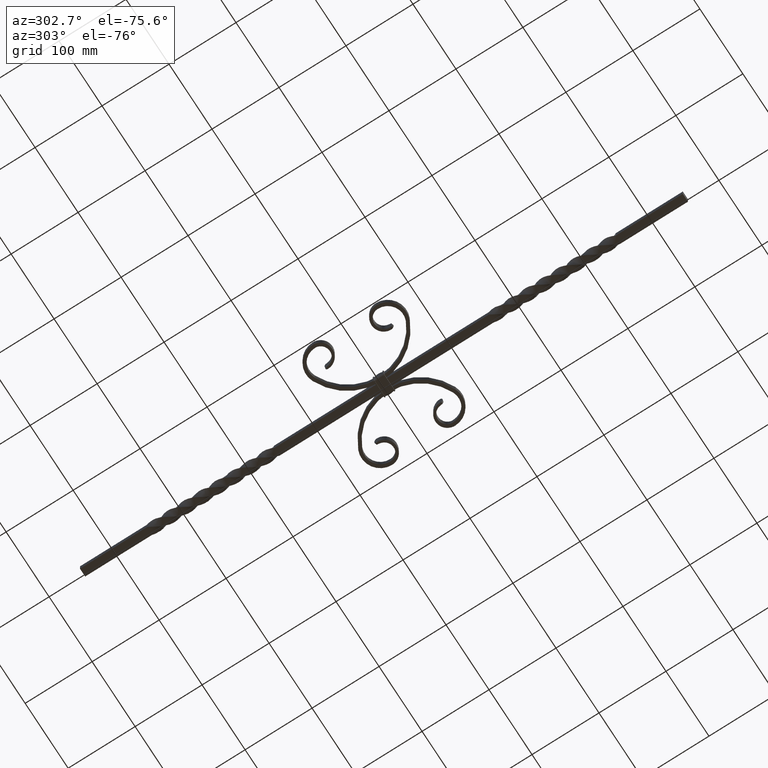
[diagram: clean part render]
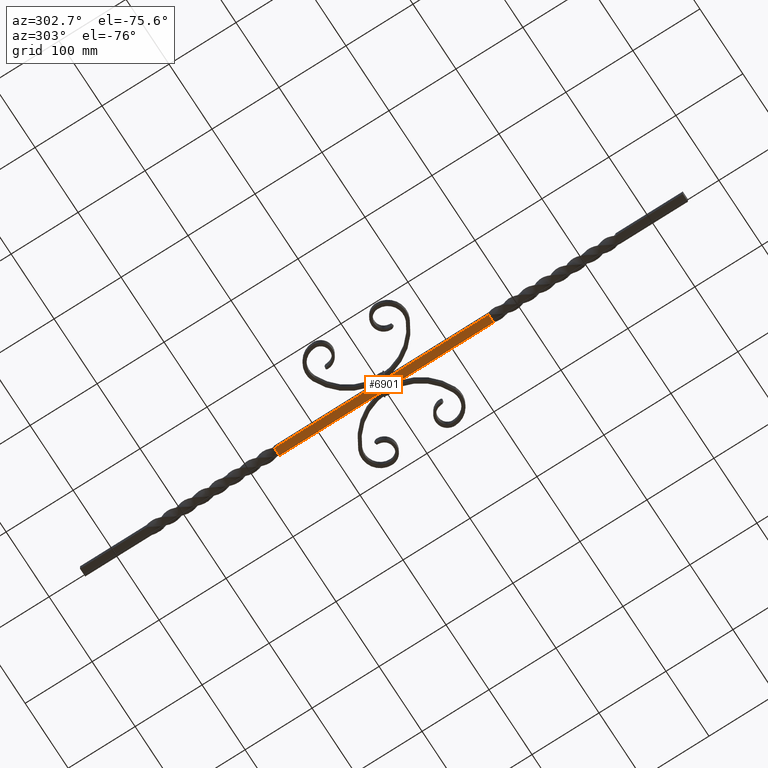
[diagram: same view with one face highlighted and labeled with its STEP entity id]
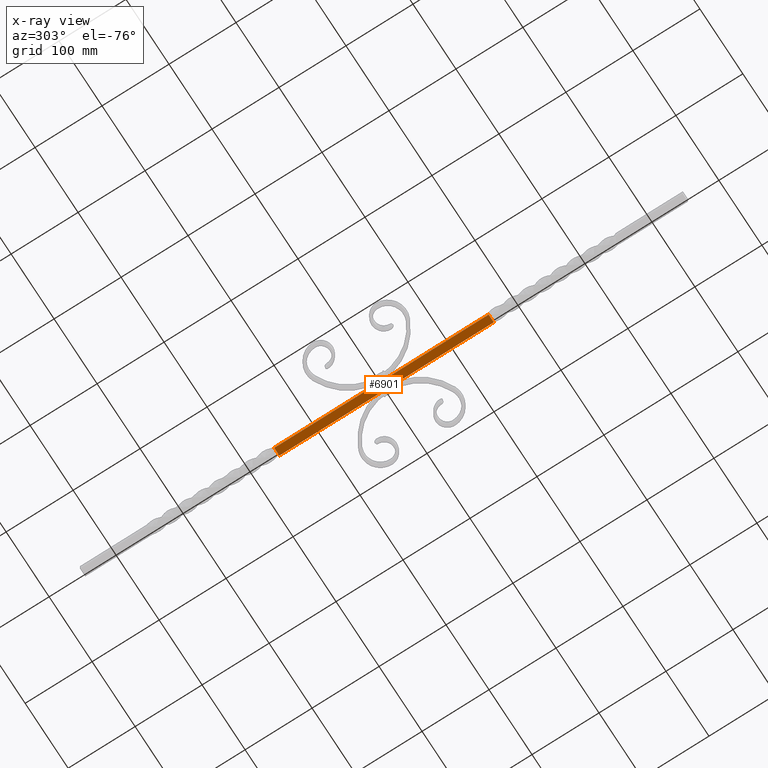
[diagram: x-ray of the same camera — body ghosted, the highlighted face saturated]
A machine part, auxiliary view. The second image highlights one B-rep face of the part: STEP entity #6901.
The next image is the same camera in x-ray: the body ghosted, the highlighted face saturated — about 0% of this face is hidden behind the body in this view.
In plain terms, the highlighted planar face has unit normal (0, -0, 1).
Its self-contained STEP definition (entity closure, byte-faithful):
#67 = CARTESIAN_POINT ( 'NONE',  ( 5.999999992773852320, -159.9999999737289897, -6.000000001710718678 ) ) ;
#265 = VERTEX_POINT ( 'NONE', #1919 ) ;
#1256 = ORIENTED_EDGE ( 'NONE', *, *, #16906, .F. ) ;
#1872 = EDGE_CURVE ( 'NONE', #6043, #13446, #7604, .T. ) ;
#1919 = CARTESIAN_POINT ( 'NONE',  ( -6.000000004341382365, -159.9999999177966572, -5.999999992773748403 ) ) ;
#2328 = CARTESIAN_POINT ( 'NONE',  ( -6.000000000405138145, -159.9999999737288761, -5.999999999594862743 ) ) ;
#2329 = CARTESIAN_POINT ( 'NONE',  ( 5.999999978469008788, 160.0000000704941101, -6.000000037018622834 ) ) ;
#2688 = DIRECTION ( 'NONE',  ( -1.000000000000000000, -1.777588897360127360E-22, 6.752312110864214897E-11 ) ) ;
#2833 = CARTESIAN_POINT ( 'NONE',  ( -6.000000036979178830, 160.0000000719577145, -5.999999978192126271 ) ) ;
#4168 = VECTOR ( 'NONE', #15801, 1000.000000000000000 ) ;
#4308 = EDGE_CURVE ( 'NONE', #6043, #13359, #15965, .T. ) ;
#4424 = FACE_OUTER_BOUND ( 'NONE', #11511, .T. ) ;
#4607 = EDGE_CURVE ( 'NONE', #13359, #265, #9376, .T. ) ;
#5171 = LINE ( 'NONE', #2328, #4168 ) ;
#5513 = PLANE ( 'NONE',  #8513 ) ;
#5534 = VECTOR ( 'NONE', #2688, 1000.000000000000000 ) ;
#6043 = VERTEX_POINT ( 'NONE', #16697 ) ;
#6682 = CARTESIAN_POINT ( 'NONE',  ( -6.000000000405138145, 450.0000000000000000, -5.999999999594862743 ) ) ;
#6901 = ADVANCED_FACE ( 'NONE', ( #4424 ), #5513, .F. ) ;
#7344 = CARTESIAN_POINT ( 'NONE',  ( 5.999999995047519796, 53.33333334211130250, -6.000000000405139922 ) ) ;
#7409 = CARTESIAN_POINT ( 'NONE',  ( 5.999999992773852320, -159.9999999737289897, -6.000000001710718678 ) ) ;
#7604 = B_SPLINE_CURVE_WITH_KNOTS ( 'NONE', 3,
 ( #2329, #7344, #11455, #7409 ),
 .UNSPECIFIED., .F., .F.,
 ( 4, 4 ),
 ( 0.000000000000000000, 1.000000000000000000 ),
 .UNSPECIFIED. ) ;
#8513 = AXIS2_PLACEMENT_3D ( 'NONE', #6682, #11923, #11990 ) ;
#8629 = ORIENTED_EDGE ( 'NONE', *, *, #4607, .F. ) ;
#9043 = ORIENTED_EDGE ( 'NONE', *, *, #1872, .T. ) ;
#9376 = B_SPLINE_CURVE_WITH_KNOTS ( 'NONE', 3,
 ( #2833, #13449, #9409, #16024 ),
 .UNSPECIFIED., .F., .F.,
 ( 4, 4 ),
 ( 0.000000000000000000, 1.000000000000000000 ),
 .UNSPECIFIED. ) ;
#9409 = CARTESIAN_POINT ( 'NONE',  ( -6.000000000405138145, -53.33333331513853182, -5.999999990500026747 ) ) ;
#9607 = ORIENTED_EDGE ( 'NONE', *, *, #4308, .F. ) ;
#11455 = CARTESIAN_POINT ( 'NONE',  ( 5.999999990500178626, -53.33333331580883652, -6.000000000405139922 ) ) ;
#11511 = EDGE_LOOP ( 'NONE', ( #9607, #9043, #1256, #8629 ) ) ;
#11923 = DIRECTION ( 'NONE',  ( 6.752312110864214897E-11, -1.131452293903462314E-20, 1.000000000000000000 ) ) ;
#11990 = DIRECTION ( 'NONE',  ( 1.000000000000000000, 1.777588897360127360E-22, -6.752312110864214897E-11 ) ) ;
#13359 = VERTEX_POINT ( 'NONE', #14451 ) ;
#13446 = VERTEX_POINT ( 'NONE', #67 ) ;
#13449 = CARTESIAN_POINT ( 'NONE',  ( -6.000000000405138145, 53.33333334345188348, -5.999999995047443413 ) ) ;
#14451 = CARTESIAN_POINT ( 'NONE',  ( -6.000000036979178830, 160.0000000719577145, -5.999999978192126271 ) ) ;
#15801 = DIRECTION ( 'NONE',  ( 1.000000000000000000, 1.777588897360127360E-22, -6.752312110864214897E-11 ) ) ;
#15965 = LINE ( 'NONE', #16168, #5534 ) ;
#16024 = CARTESIAN_POINT ( 'NONE',  ( -6.000000004341382365, -159.9999999177966572, -5.999999992773748403 ) ) ;
#16168 = CARTESIAN_POINT ( 'NONE',  ( -6.000000000405138145, 160.0000000000314628, -5.999999999594862743 ) ) ;
#16697 = CARTESIAN_POINT ( 'NONE',  ( 5.999999978469008788, 160.0000000704941101, -6.000000037018622834 ) ) ;
#16906 = EDGE_CURVE ( 'NONE', #265, #13446, #5171, .T. ) ;